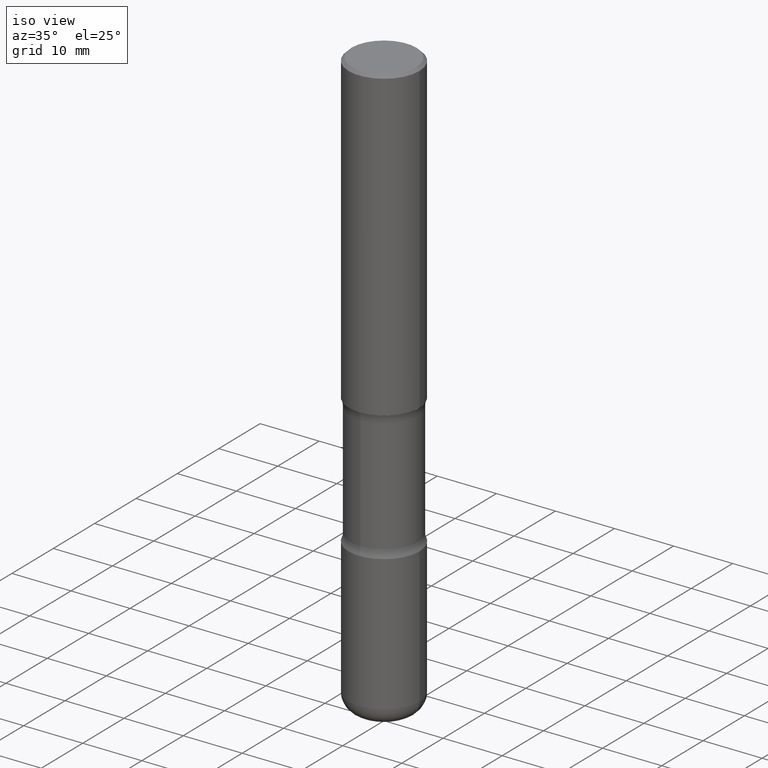
[diagram: clean part render]
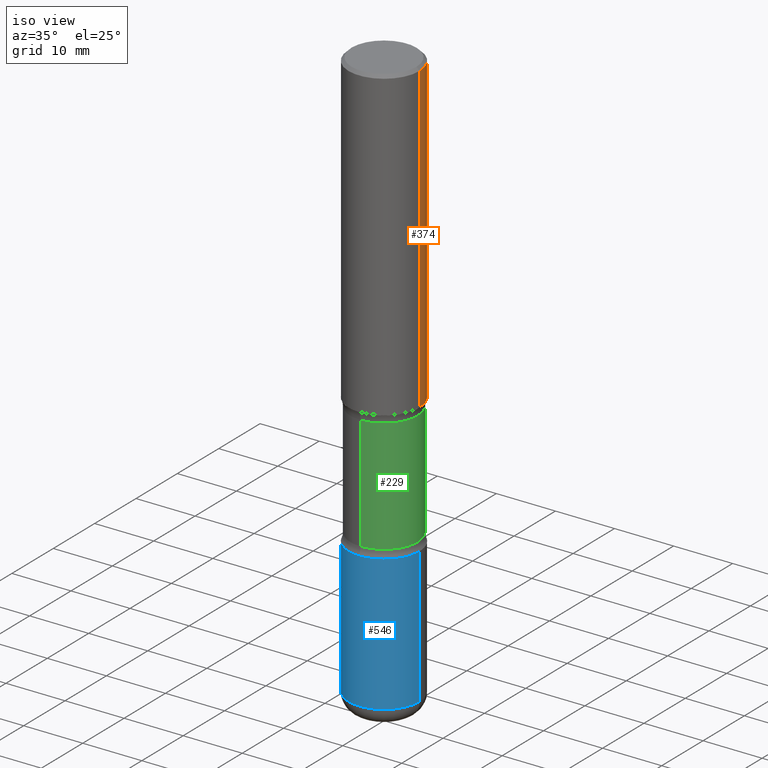
[diagram: same view with three faces highlighted in distinct colors, each labeled with its STEP entity id]
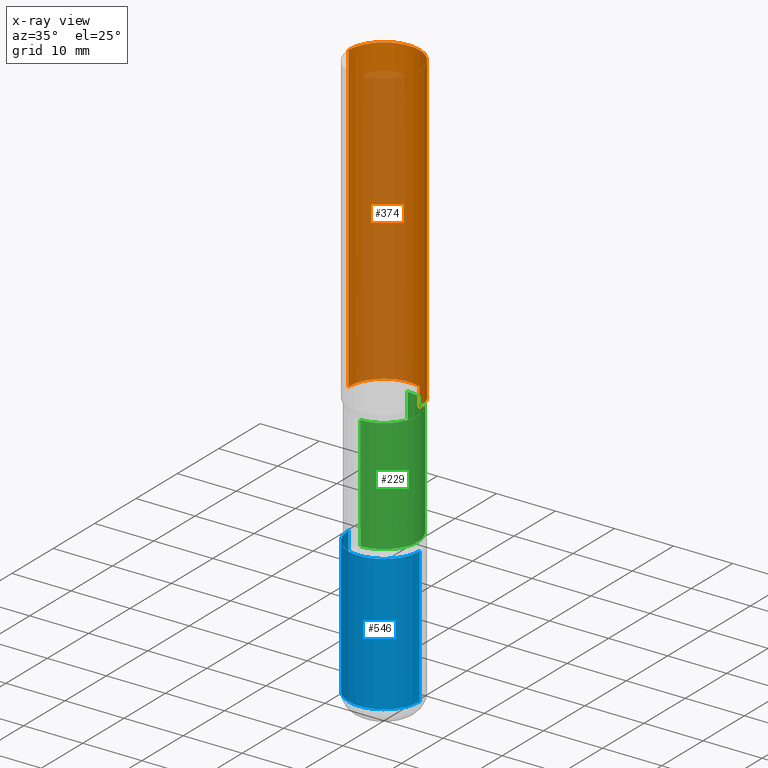
[diagram: x-ray of the same camera — body ghosted, the three highlighted faces saturated]
A machine part, iso view with three faces highlighted in distinct colors.
The next image is the same camera in x-ray (body ghosted, the three faces saturated) — at least one of them is partly hidden behind the body in this view.
Their STEP definitions:

[orange] entity #374 — the highlighted cylindrical surface (partial cylindrical patch) has radius 5.9995 mm, axis along (-0, 0, 1).
#11 = AXIS2_PLACEMENT_3D ( 'NONE', #131, #94, #520 ) ;
#36 = VECTOR ( 'NONE', #163, 39.37007874015748143 ) ;
#53 = CARTESIAN_POINT ( 'NONE',  ( 0.2361999999999999933, -1.649375784469496131E-15, 1.151752954443000088E-29 ) ) ;
#68 = VERTEX_POINT ( 'NONE', #426 ) ;
#72 = ORIENTED_EDGE ( 'NONE', *, *, #111, .F. ) ;
#88 = CIRCLE ( 'NONE', #11, 0.2362000000000001321 ) ;
#91 = LINE ( 'NONE', #53, #383 ) ;
#94 = DIRECTION ( 'NONE',  ( -2.445468806185136597E-29, 3.491481338843145583E-15, 1.000000000000000000 ) ) ;
#111 = EDGE_CURVE ( 'NONE', #316, #201, #175, .T. ) ;
#125 = EDGE_CURVE ( 'NONE', #68, #201, #295, .T. ) ;
#131 = CARTESIAN_POINT ( 'NONE',  ( 5.006363740022212241E-29, -7.147760596879688202E-15, -2.047200000000000131 ) ) ;
#163 = DIRECTION ( 'NONE',  ( -2.445468806185136877E-29, 3.491481338843145188E-15, 1.000000000000000000 ) ) ;
#175 = CIRCLE ( 'NONE', #450, 0.2361999999999998823 ) ;
#187 = DIRECTION ( 'NONE',  ( -2.445468806185136597E-29, 3.491481338843145583E-15, 1.000000000000000000 ) ) ;
#201 = VERTEX_POINT ( 'NONE', #487 ) ;
#224 = ORIENTED_EDGE ( 'NONE', *, *, #245, .T. ) ;
#240 = FACE_OUTER_BOUND ( 'NONE', #482, .T. ) ;
#245 = EDGE_CURVE ( 'NONE', #280, #68, #88, .T. ) ;
#280 = VERTEX_POINT ( 'NONE', #297 ) ;
#281 = CARTESIAN_POINT ( 'NONE',  ( 0.000000000000000000, 0.000000000000000000, 0.000000000000000000 ) ) ;
#288 = DIRECTION ( 'NONE',  ( 1.000000000000000000, -6.982962677686267499E-15, 0.000000000000000000 ) ) ;
#295 = LINE ( 'NONE', #369, #36 ) ;
#297 = CARTESIAN_POINT ( 'NONE',  ( 0.2362000000000001321, -8.797136381349186305E-15, -2.047200000000000131 ) ) ;
#316 = VERTEX_POINT ( 'NONE', #433 ) ;
#317 = EDGE_CURVE ( 'NONE', #280, #316, #91, .T. ) ;
#357 = ORIENTED_EDGE ( 'NONE', *, *, #125, .T. ) ;
#369 = CARTESIAN_POINT ( 'NONE',  ( -0.2361999999999999933, 1.678301941865356591E-15, -1.161852468318208757E-29 ) ) ;
#374 = ADVANCED_FACE ( 'NONE', ( #240 ), #504, .T. ) ;
#383 = VECTOR ( 'NONE', #434, 39.37007874015748143 ) ;
#426 = CARTESIAN_POINT ( 'NONE',  ( -0.2362000000000001598, -1.930493169962915017E-15, -2.047200000000000131 ) ) ;
#433 = CARTESIAN_POINT ( 'NONE',  ( 0.2361999999999998823, -1.690279253850498179E-15, -0.02000000000000006981 ) ) ;
#434 = DIRECTION ( 'NONE',  ( -2.445468806185136877E-29, 3.491481338843145188E-15, 1.000000000000000000 ) ) ;
#450 = AXIS2_PLACEMENT_3D ( 'NONE', #557, #463, #288 ) ;
#454 = DIRECTION ( 'NONE',  ( 1.000000000000000000, -6.982962677686266711E-15, 4.876176775795936353E-29 ) ) ;
#456 = ORIENTED_EDGE ( 'NONE', *, *, #317, .F. ) ;
#463 = DIRECTION ( 'NONE',  ( -2.445468806185136597E-29, 3.491481338843145583E-15, 1.000000000000000000 ) ) ;
#482 = EDGE_LOOP ( 'NONE', ( #224, #357, #72, #456 ) ) ;
#487 = CARTESIAN_POINT ( 'NONE',  ( -0.2361999999999998823, 1.579546157692632438E-15, -0.02000000000000006981 ) ) ;
#504 = CYLINDRICAL_SURFACE ( 'NONE', #509, 0.2361999999999999933 ) ;
#509 = AXIS2_PLACEMENT_3D ( 'NONE', #281, #187, #454 ) ;
#520 = DIRECTION ( 'NONE',  ( 1.000000000000000000, -6.982962677686269077E-15, 0.000000000000000000 ) ) ;
#557 = CARTESIAN_POINT ( 'NONE',  ( 4.890937612370289799E-31, -6.982962677686315028E-17, -0.02000000000000006981 ) ) ;

[blue] entity #546 — the highlighted cylindrical surface (partial cylindrical patch) has radius 5.9995 mm, axis along (-0, 0, 1).
#6 = VERTEX_POINT ( 'NONE', #469 ) ;
#8 = VECTOR ( 'NONE', #560, 39.37007874015748143 ) ;
#23 = DIRECTION ( 'NONE',  ( -2.445468806185136597E-29, 3.491481338843145583E-15, 1.000000000000000000 ) ) ;
#24 = ORIENTED_EDGE ( 'NONE', *, *, #271, .F. ) ;
#27 = CIRCLE ( 'NONE', #114, 0.2362000000000002153 ) ;
#59 = ORIENTED_EDGE ( 'NONE', *, *, #340, .F. ) ;
#61 = CARTESIAN_POINT ( 'NONE',  ( 9.339000823940415305E-29, -1.333361808490808613E-14, -3.818899999999998851 ) ) ;
#62 = EDGE_LOOP ( 'NONE', ( #24, #260, #236, #59 ) ) ;
#84 = EDGE_CURVE ( 'NONE', #6, #327, #553, .T. ) ;
#114 = AXIS2_PLACEMENT_3D ( 'NONE', #61, #495, #492 ) ;
#115 = CYLINDRICAL_SURFACE ( 'NONE', #516, 0.2362000000000001598 ) ;
#117 = DIRECTION ( 'NONE',  ( -2.445468806185136597E-29, 3.491481338843145583E-15, 1.000000000000000000 ) ) ;
#236 = ORIENTED_EDGE ( 'NONE', *, *, #84, .T. ) ;
#239 = VERTEX_POINT ( 'NONE', #484 ) ;
#254 = DIRECTION ( 'NONE',  ( 1.000000000000000000, -6.982962677686266711E-15, 4.876176775795936353E-29 ) ) ;
#260 = ORIENTED_EDGE ( 'NONE', *, *, #464, .T. ) ;
#270 = DIRECTION ( 'NONE',  ( -2.445468806185136877E-29, 3.491481338843145188E-15, 1.000000000000000000 ) ) ;
#271 = EDGE_CURVE ( 'NONE', #239, #544, #437, .T. ) ;
#327 = VERTEX_POINT ( 'NONE', #348 ) ;
#340 = EDGE_CURVE ( 'NONE', #544, #327, #542, .T. ) ;
#345 = AXIS2_PLACEMENT_3D ( 'NONE', #387, #23, #502 ) ;
#348 = CARTESIAN_POINT ( 'NONE',  ( 0.2362000000000001321, -1.182145751705511899E-14, -2.913400000000000212 ) ) ;
#387 = CARTESIAN_POINT ( 'NONE',  ( 7.124628819939777829E-29, -1.017208173258562247E-14, -2.913400000000000212 ) ) ;
#412 = CARTESIAN_POINT ( 'NONE',  ( 0.000000000000000000, 0.000000000000000000, 0.000000000000000000 ) ) ;
#417 = CARTESIAN_POINT ( 'NONE',  ( -0.2362000000000001321, -1.007454796688149554E-14, -2.913400000000000212 ) ) ;
#419 = CARTESIAN_POINT ( 'NONE',  ( 0.2362000000000001598, -1.649375784469497314E-15, 1.151752954443000929E-29 ) ) ;
#437 = LINE ( 'NONE', #481, #550 ) ;
#464 = EDGE_CURVE ( 'NONE', #239, #6, #27, .T. ) ;
#469 = CARTESIAN_POINT ( 'NONE',  ( 0.2362000000000002153, -1.498299386937758423E-14, -3.818899999999998851 ) ) ;
#472 = FACE_OUTER_BOUND ( 'NONE', #62, .T. ) ;
#481 = CARTESIAN_POINT ( 'NONE',  ( -0.2362000000000001598, 1.678301941865357775E-15, -1.161852468318209598E-29 ) ) ;
#484 = CARTESIAN_POINT ( 'NONE',  ( -0.2362000000000002153, -1.165531614304272658E-14, -3.818899999999998851 ) ) ;
#492 = DIRECTION ( 'NONE',  ( 1.000000000000000000, -6.982962677686266711E-15, 0.000000000000000000 ) ) ;
#495 = DIRECTION ( 'NONE',  ( -2.445468806185136597E-29, 3.491481338843145583E-15, 1.000000000000000000 ) ) ;
#502 = DIRECTION ( 'NONE',  ( 1.000000000000000000, -6.982962677686269077E-15, 0.000000000000000000 ) ) ;
#516 = AXIS2_PLACEMENT_3D ( 'NONE', #412, #117, #254 ) ;
#542 = CIRCLE ( 'NONE', #345, 0.2362000000000001321 ) ;
#544 = VERTEX_POINT ( 'NONE', #417 ) ;
#546 = ADVANCED_FACE ( 'NONE', ( #472 ), #115, .T. ) ;
#550 = VECTOR ( 'NONE', #270, 39.37007874015748143 ) ;
#553 = LINE ( 'NONE', #419, #8 ) ;
#560 = DIRECTION ( 'NONE',  ( -2.445468806185136877E-29, 3.491481338843145188E-15, 1.000000000000000000 ) ) ;

[green] entity #229 — the highlighted cylindrical surface (partial cylindrical patch) has radius 5.6998 mm, axis along (0, -0, -1).
#9 = CARTESIAN_POINT ( 'NONE',  ( 9.710227154047748282E-29, -1.362793696358492956E-14, -3.937000000000000277 ) ) ;
#10 = VECTOR ( 'NONE', #100, 39.37007874015748143 ) ;
#17 = CARTESIAN_POINT ( 'NONE',  ( 1.566976824872848494E-15, 0.2243999999999925499, -2.100216601173596320 ) ) ;
#51 = ORIENTED_EDGE ( 'NONE', *, *, #174, .F. ) ;
#56 = DIRECTION ( 'NONE',  ( 2.525985086076564115E-29, -3.376177443336566513E-15, -1.000000000000000000 ) ) ;
#60 = DIRECTION ( 'NONE',  ( 6.982962677686265922E-15, 1.000000000000000000, -3.652203200085913934E-15 ) ) ;
#86 = CARTESIAN_POINT ( 'NONE',  ( 1.566976824872894642E-15, 0.2243999999999863049, -3.937000000000000721 ) ) ;
#89 = DIRECTION ( 'NONE',  ( 2.525985086076564115E-29, -3.376177443336566513E-15, -1.000000000000000000 ) ) ;
#99 = VERTEX_POINT ( 'NONE', #113 ) ;
#100 = DIRECTION ( 'NONE',  ( 2.525985086076564115E-29, -3.376177443336566513E-15, -1.000000000000000000 ) ) ;
#105 = CARTESIAN_POINT ( 'NONE',  ( -1.539495750699834052E-15, -0.2244000000000135608, -3.936999999999999389 ) ) ;
#113 = CARTESIAN_POINT ( 'NONE',  ( -1.579972688886734072E-15, -0.2244000000000073713, -2.100216601173594544 ) ) ;
#127 = CARTESIAN_POINT ( 'NONE',  ( 5.070539682259229331E-29, -7.426630284172150130E-15, -2.100216601173595432 ) ) ;
#142 = ORIENTED_EDGE ( 'NONE', *, *, #221, .T. ) ;
#174 = EDGE_CURVE ( 'NONE', #409, #185, #251, .T. ) ;
#185 = VERTEX_POINT ( 'NONE', #306 ) ;
#204 = CARTESIAN_POINT ( 'NONE',  ( 6.990709676060807691E-29, -9.993088279580958225E-15, -2.860383398826405354 ) ) ;
#220 = CYLINDRICAL_SURFACE ( 'NONE', #394, 0.2243999999999999329 ) ;
#221 = EDGE_CURVE ( 'NONE', #485, #99, #460, .T. ) ;
#229 = ADVANCED_FACE ( 'NONE', ( #342 ), #220, .T. ) ;
#230 = LINE ( 'NONE', #86, #353 ) ;
#244 = EDGE_LOOP ( 'NONE', ( #142, #443, #51, #506 ) ) ;
#251 = CIRCLE ( 'NONE', #514, 0.2243999999999999606 ) ;
#258 = DIRECTION ( 'NONE',  ( 2.525985086076564115E-29, -3.376177443336566513E-15, -1.000000000000000000 ) ) ;
#276 = EDGE_CURVE ( 'NONE', #485, #409, #230, .T. ) ;
#306 = CARTESIAN_POINT ( 'NONE',  ( -1.579972688886713168E-15, -0.2244000000000099804, -2.860383398826404466 ) ) ;
#342 = FACE_OUTER_BOUND ( 'NONE', #244, .T. ) ;
#352 = AXIS2_PLACEMENT_3D ( 'NONE', #127, #89, #60 ) ;
#353 = VECTOR ( 'NONE', #56, 39.37007874015748143 ) ;
#354 = LINE ( 'NONE', #105, #10 ) ;
#380 = EDGE_CURVE ( 'NONE', #99, #185, #354, .T. ) ;
#391 = DIRECTION ( 'NONE',  ( 2.525985086076564115E-29, -3.376177443336566513E-15, -1.000000000000000000 ) ) ;
#394 = AXIS2_PLACEMENT_3D ( 'NONE', #9, #391, #528 ) ;
#406 = CARTESIAN_POINT ( 'NONE',  ( 1.566976824872867821E-15, 0.2243999999999899686, -2.860383398826405799 ) ) ;
#409 = VERTEX_POINT ( 'NONE', #406 ) ;
#423 = DIRECTION ( 'NONE',  ( 6.982962677686265922E-15, 1.000000000000000000, -2.434802133390609421E-15 ) ) ;
#443 = ORIENTED_EDGE ( 'NONE', *, *, #380, .T. ) ;
#460 = CIRCLE ( 'NONE', #352, 0.2243999999999999606 ) ;
#485 = VERTEX_POINT ( 'NONE', #17 ) ;
#506 = ORIENTED_EDGE ( 'NONE', *, *, #276, .F. ) ;
#514 = AXIS2_PLACEMENT_3D ( 'NONE', #204, #258, #423 ) ;
#528 = DIRECTION ( 'NONE',  ( 6.982962677686265922E-15, 1.000000000000000000, -2.434802133390609815E-15 ) ) ;